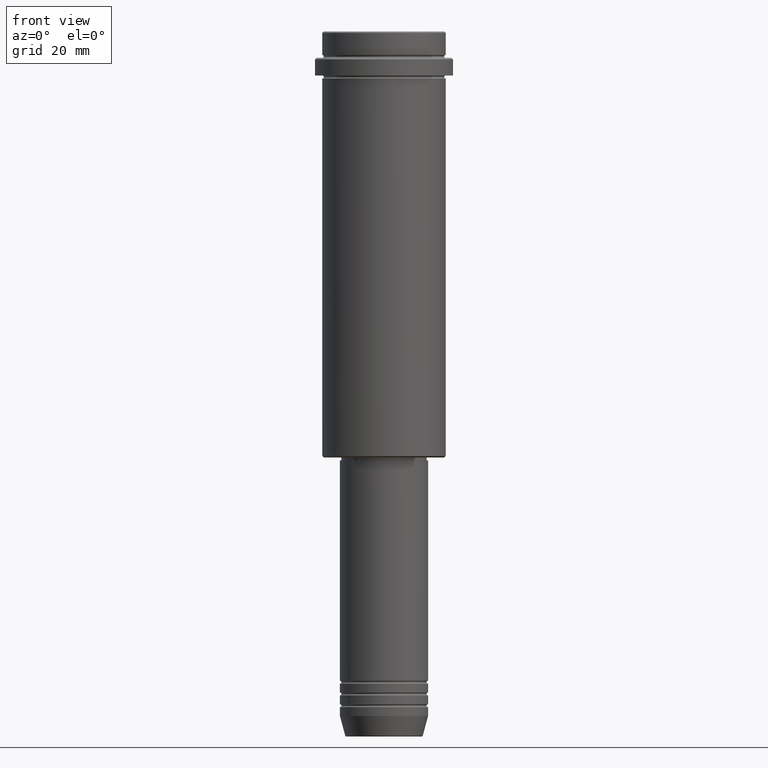
[diagram: clean part render]
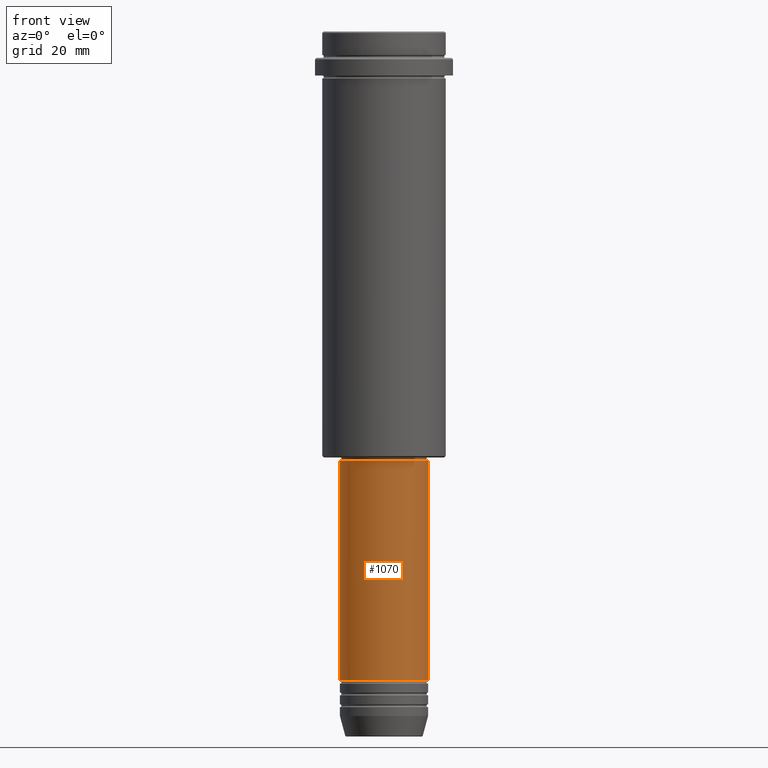
[diagram: same view with one face highlighted and labeled with its STEP entity id]
A machine part, front view. The second image highlights one B-rep face of the part: STEP entity #1070.
In plain terms, the highlighted cylindrical surface (partial cylindrical patch) has radius 15 mm, axis along (-0, -0, 1).
Its self-contained STEP definition (entity closure, byte-faithful):
#36 = LINE ( 'NONE', #454, #1040 ) ;
#125 = AXIS2_PLACEMENT_3D ( 'NONE', #868, #755, #1014 ) ;
#201 = EDGE_CURVE ( 'NONE', #630, #1246, #739, .T. ) ;
#212 = CARTESIAN_POINT ( 'NONE',  ( -15.00000000000000000, 1.836970198721029589E-15, -146.0000000000000284 ) ) ;
#214 = CIRCLE ( 'NONE', #1146, 15.00000000000000000 ) ;
#250 = LINE ( 'NONE', #572, #1143 ) ;
#292 = CARTESIAN_POINT ( 'NONE',  ( 15.00000000000000000, 0.000000000000000000, -220.9999999999999147 ) ) ;
#306 = DIRECTION ( 'NONE',  ( -0.000000000000000000, -0.000000000000000000, 1.000000000000000000 ) ) ;
#322 = EDGE_LOOP ( 'NONE', ( #1029, #338, #1414, #1105 ) ) ;
#338 = ORIENTED_EDGE ( 'NONE', *, *, #1034, .T. ) ;
#339 = DIRECTION ( 'NONE',  ( 1.000000000000000000, 0.000000000000000000, 0.000000000000000000 ) ) ;
#437 = CARTESIAN_POINT ( 'NONE',  ( 0.000000000000000000, 0.000000000000000000, 0.000000000000000000 ) ) ;
#448 = EDGE_CURVE ( 'NONE', #916, #1246, #250, .T. ) ;
#454 = CARTESIAN_POINT ( 'NONE',  ( -15.00000000000000000, 1.836970198721029589E-15, 0.000000000000000000 ) ) ;
#457 = AXIS2_PLACEMENT_3D ( 'NONE', #437, #758, #992 ) ;
#519 = CARTESIAN_POINT ( 'NONE',  ( -15.00000000000000000, 1.836970198721029589E-15, -220.9999999999999147 ) ) ;
#572 = CARTESIAN_POINT ( 'NONE',  ( 15.00000000000000000, 0.000000000000000000, 0.000000000000000000 ) ) ;
#630 = VERTEX_POINT ( 'NONE', #212 ) ;
#739 = CIRCLE ( 'NONE', #125, 15.00000000000000000 ) ;
#751 = CARTESIAN_POINT ( 'NONE',  ( 0.000000000000000000, 0.000000000000000000, -220.9999999999999147 ) ) ;
#755 = DIRECTION ( 'NONE',  ( -0.000000000000000000, -0.000000000000000000, 1.000000000000000000 ) ) ;
#758 = DIRECTION ( 'NONE',  ( -0.000000000000000000, -0.000000000000000000, 1.000000000000000000 ) ) ;
#774 = DIRECTION ( 'NONE',  ( -0.000000000000000000, -0.000000000000000000, 1.000000000000000000 ) ) ;
#775 = EDGE_CURVE ( 'NONE', #872, #630, #36, .T. ) ;
#868 = CARTESIAN_POINT ( 'NONE',  ( 0.000000000000000000, 0.000000000000000000, -146.0000000000000284 ) ) ;
#872 = VERTEX_POINT ( 'NONE', #519 ) ;
#894 = FACE_OUTER_BOUND ( 'NONE', #322, .T. ) ;
#902 = DIRECTION ( 'NONE',  ( -0.000000000000000000, -0.000000000000000000, 1.000000000000000000 ) ) ;
#916 = VERTEX_POINT ( 'NONE', #292 ) ;
#992 = DIRECTION ( 'NONE',  ( 1.000000000000000000, 0.000000000000000000, 0.000000000000000000 ) ) ;
#1014 = DIRECTION ( 'NONE',  ( 1.000000000000000000, 0.000000000000000000, 0.000000000000000000 ) ) ;
#1029 = ORIENTED_EDGE ( 'NONE', *, *, #775, .F. ) ;
#1034 = EDGE_CURVE ( 'NONE', #872, #916, #214, .T. ) ;
#1040 = VECTOR ( 'NONE', #902, 1000.000000000000000 ) ;
#1070 = ADVANCED_FACE ( 'NONE', ( #894 ), #1098, .T. ) ;
#1098 = CYLINDRICAL_SURFACE ( 'NONE', #457, 15.00000000000000000 ) ;
#1105 = ORIENTED_EDGE ( 'NONE', *, *, #201, .F. ) ;
#1143 = VECTOR ( 'NONE', #306, 1000.000000000000000 ) ;
#1146 = AXIS2_PLACEMENT_3D ( 'NONE', #751, #774, #339 ) ;
#1246 = VERTEX_POINT ( 'NONE', #1350 ) ;
#1350 = CARTESIAN_POINT ( 'NONE',  ( 15.00000000000000000, 0.000000000000000000, -146.0000000000000284 ) ) ;
#1414 = ORIENTED_EDGE ( 'NONE', *, *, #448, .T. ) ;